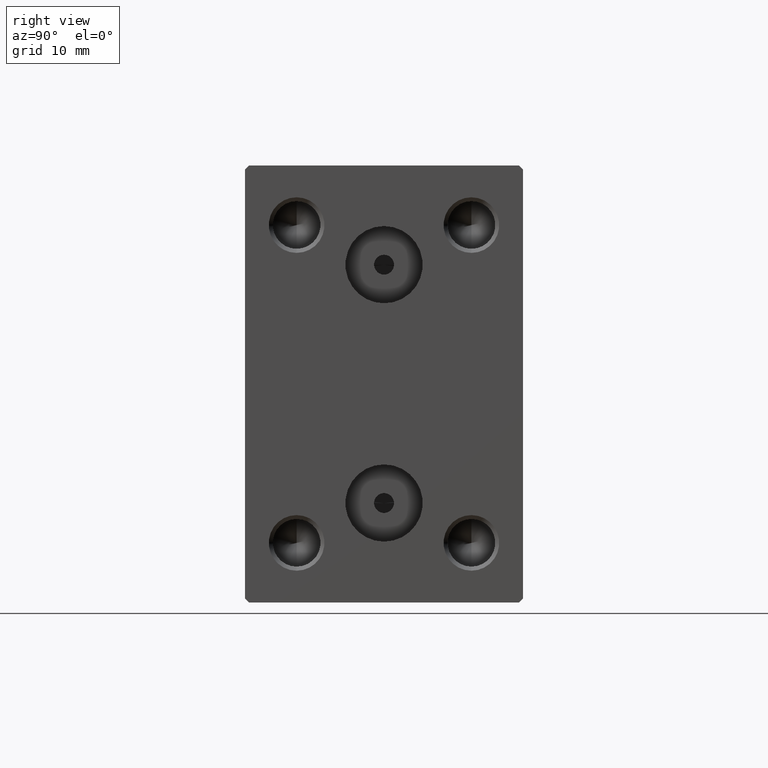
[diagram: clean part render]
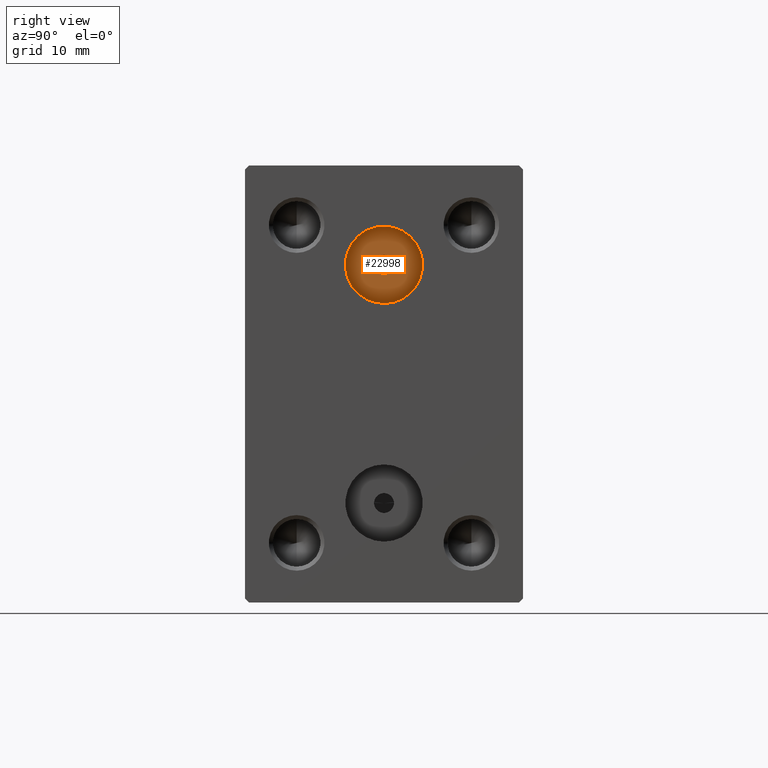
[diagram: same view with one face highlighted and labeled with its STEP entity id]
A machine part, right view. The second image highlights one B-rep face of the part: STEP entity #22998.
In plain terms, the highlighted planar face has unit normal (1, 0, 0).
Its self-contained STEP definition (entity closure, byte-faithful):
#81 = CARTESIAN_POINT ( 'NONE',  ( 46.00000000000000000, -1.836970198721029589E-15, 15.00000000000000000 ) ) ;
#277 = AXIS2_PLACEMENT_3D ( 'NONE', #14148, #38281, #27795 ) ;
#542 = PLANE ( 'NONE',  #277 ) ;
#848 = CIRCLE ( 'NONE', #32221, 4.859999999999999432 ) ;
#2535 = EDGE_CURVE ( 'NONE', #33549, #40470, #848, .T. ) ;
#4934 = CIRCLE ( 'NONE', #12759, 1.249999999999999334 ) ;
#5690 = EDGE_LOOP ( 'NONE', ( #23045, #25708 ) ) ;
#6065 = DIRECTION ( 'NONE',  ( 1.000000000000000000, 0.000000000000000000, 0.000000000000000000 ) ) ;
#6399 = EDGE_CURVE ( 'NONE', #34933, #27530, #4934, .T. ) ;
#6441 = EDGE_LOOP ( 'NONE', ( #38978, #12288 ) ) ;
#8471 = DIRECTION ( 'NONE',  ( 0.000000000000000000, 0.000000000000000000, -1.000000000000000000 ) ) ;
#8768 = DIRECTION ( 'NONE',  ( 1.000000000000000000, 0.000000000000000000, 0.000000000000000000 ) ) ;
#8794 = CARTESIAN_POINT ( 'NONE',  ( 46.00000000000000000, -1.241791854335416311E-15, 19.85999999999999943 ) ) ;
#9075 = DIRECTION ( 'NONE',  ( 0.000000000000000000, 0.000000000000000000, -1.000000000000000000 ) ) ;
#9460 = AXIS2_PLACEMENT_3D ( 'NONE', #15660, #6065, #42943 ) ;
#10046 = CARTESIAN_POINT ( 'NONE',  ( 46.00000000000000000, -1.836970198721029589E-15, 13.75000000000000000 ) ) ;
#10585 = FACE_OUTER_BOUND ( 'NONE', #6441, .T. ) ;
#12288 = ORIENTED_EDGE ( 'NONE', *, *, #15968, .T. ) ;
#12759 = AXIS2_PLACEMENT_3D ( 'NONE', #32157, #39516, #8471 ) ;
#14148 = CARTESIAN_POINT ( 'NONE',  ( 46.00000000000000000, -1.836970198721029589E-15, 15.00000000000000000 ) ) ;
#15660 = CARTESIAN_POINT ( 'NONE',  ( 46.00000000000000000, -1.836970198721029589E-15, 15.00000000000000000 ) ) ;
#15968 = EDGE_CURVE ( 'NONE', #40470, #33549, #23005, .T. ) ;
#15970 = DIRECTION ( 'NONE',  ( 1.000000000000000000, 0.000000000000000000, 0.000000000000000000 ) ) ;
#22998 = ADVANCED_FACE ( 'NONE', ( #31148, #10585 ), #542, .T. ) ;
#23005 = CIRCLE ( 'NONE', #9460, 4.859999999999999432 ) ;
#23045 = ORIENTED_EDGE ( 'NONE', *, *, #26540, .F. ) ;
#25658 = CARTESIAN_POINT ( 'NONE',  ( 46.00000000000000000, -1.836970198721029589E-15, 10.14000000000000057 ) ) ;
#25708 = ORIENTED_EDGE ( 'NONE', *, *, #6399, .F. ) ;
#26540 = EDGE_CURVE ( 'NONE', #27530, #34933, #33875, .T. ) ;
#27530 = VERTEX_POINT ( 'NONE', #10046 ) ;
#27795 = DIRECTION ( 'NONE',  ( 0.000000000000000000, 0.000000000000000000, -1.000000000000000000 ) ) ;
#30312 = AXIS2_PLACEMENT_3D ( 'NONE', #81, #8768, #32667 ) ;
#31148 = FACE_BOUND ( 'NONE', #5690, .T. ) ;
#32157 = CARTESIAN_POINT ( 'NONE',  ( 46.00000000000000000, -1.836970198721029589E-15, 15.00000000000000000 ) ) ;
#32221 = AXIS2_PLACEMENT_3D ( 'NONE', #39232, #15970, #9075 ) ;
#32667 = DIRECTION ( 'NONE',  ( 0.000000000000000000, 0.000000000000000000, -1.000000000000000000 ) ) ;
#33549 = VERTEX_POINT ( 'NONE', #25658 ) ;
#33875 = CIRCLE ( 'NONE', #30312, 1.249999999999999334 ) ;
#34933 = VERTEX_POINT ( 'NONE', #41255 ) ;
#38281 = DIRECTION ( 'NONE',  ( 1.000000000000000000, 0.000000000000000000, 0.000000000000000000 ) ) ;
#38978 = ORIENTED_EDGE ( 'NONE', *, *, #2535, .T. ) ;
#39232 = CARTESIAN_POINT ( 'NONE',  ( 46.00000000000000000, -1.836970198721029589E-15, 15.00000000000000000 ) ) ;
#39516 = DIRECTION ( 'NONE',  ( 1.000000000000000000, 0.000000000000000000, 0.000000000000000000 ) ) ;
#40470 = VERTEX_POINT ( 'NONE', #8794 ) ;
#41255 = CARTESIAN_POINT ( 'NONE',  ( 46.00000000000000000, -1.683889348827610851E-15, 16.25000000000000000 ) ) ;
#42943 = DIRECTION ( 'NONE',  ( 0.000000000000000000, 0.000000000000000000, -1.000000000000000000 ) ) ;